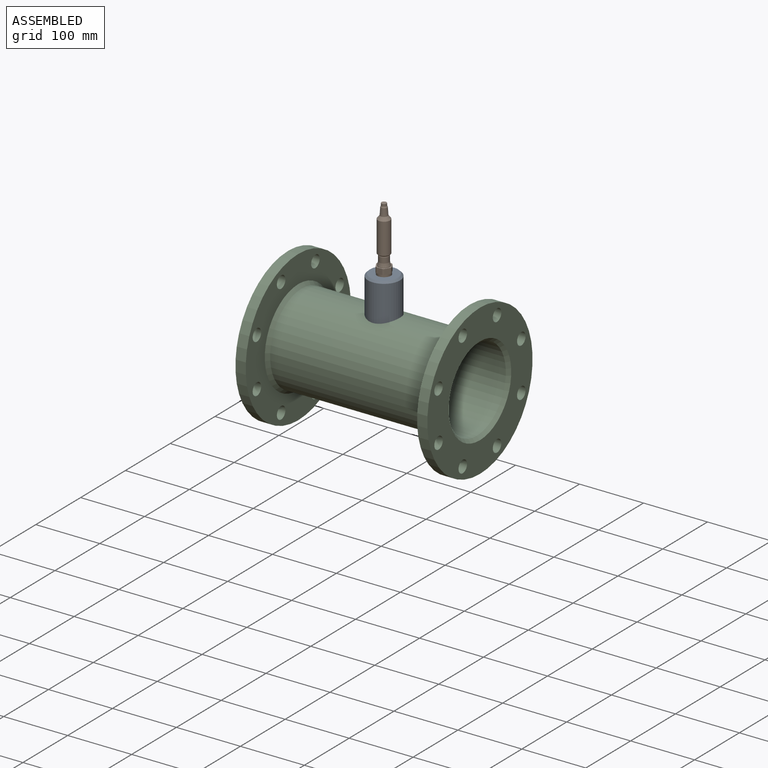
[diagram: assembled view]
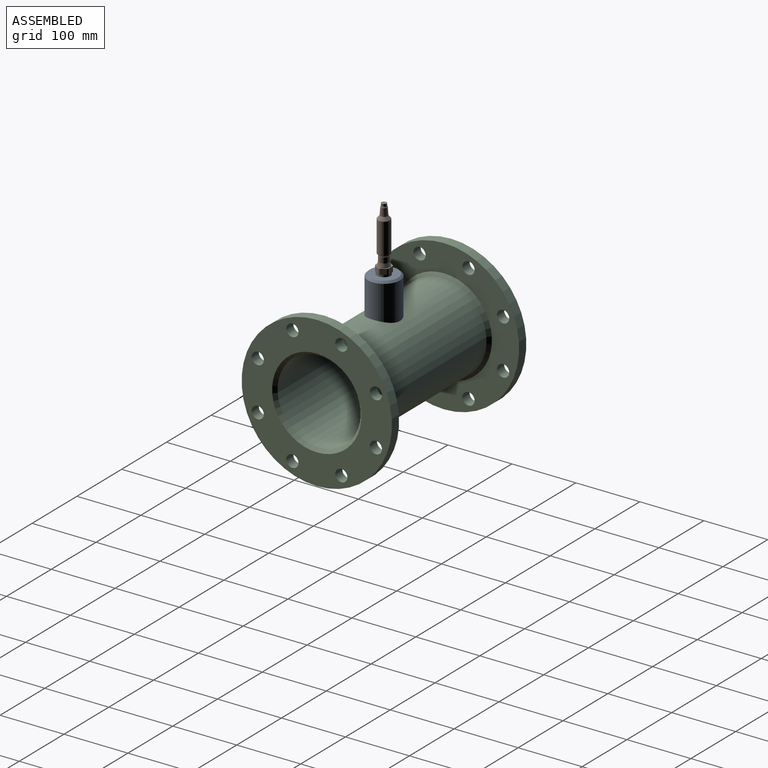
[diagram: assembled view, second angle]
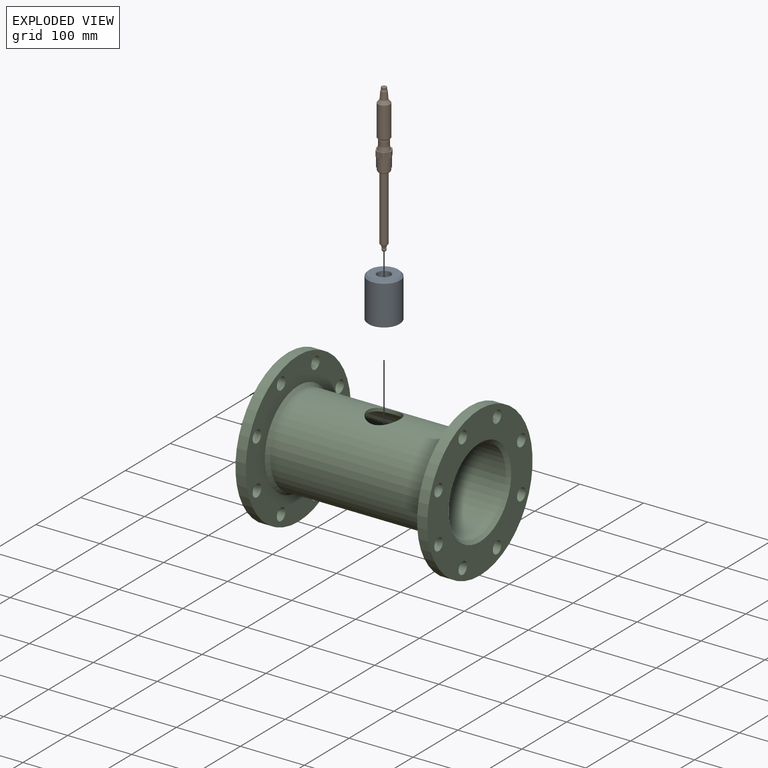
[diagram: exploded view]
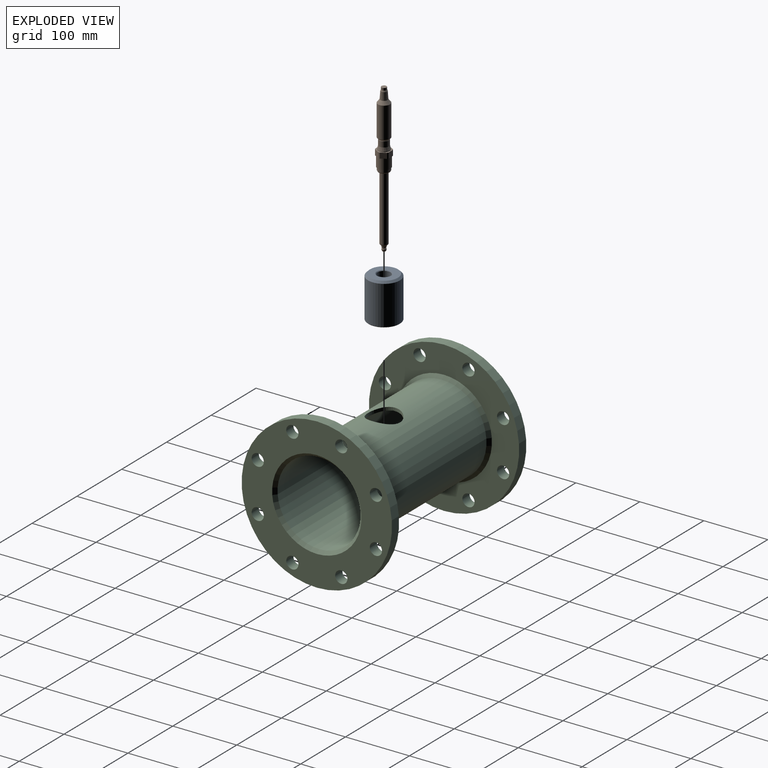
[diagram: exploded view, second angle]
ASSEMBLY  parts=3 mates=2
PART A: 18 faces, bbox 50x50x65 mm
  f0: cylinder r=9.25mm len=18.5mm, axis (0,0,1), area 145.3mm2, adj f8,f17
  f1: cylinder r=6.05mm len=44.5mm, axis (0,0,-1), area 1691.6mm2, adj f7,f8
  f2: cylinder r=25mm len=61mm, axis (0,0,-1), area 9581.9mm2, adj f5,f6
  f3: plane 44x44mm, normal (0,0,1), area 1126.4mm2, adj f5,f16
  f4: plane 48x48mm, normal (0,0,-1), area 1653.4mm2, adj f6,f7
  f5: cone r=22mm half-angle=45deg, axis (0,0,-1), area 626.4mm2, adj f2,f3
  f6: cone r=25mm half-angle=45deg, axis (0,0,1), area 217.7mm2, adj f2,f4
  f7: cone r=6.05mm half-angle=45deg, axis (0,0,-1), area 58.2mm2, adj f1,f4
  f8: plane 18.5x18.5mm, normal (0,0,1), area 153.8mm2, adj f0,f1
  f9: cylinder r=10.2mm len=20.4mm, axis (0,0,1), area 67.3mm2, adj f13,f17
  f10: cylinder r=10.2mm len=20.4mm, axis (0,0,1), area 705mm2, adj f11,f16
  f11: plane 21x21mm, normal (0,0,-1), area 19.5mm2, adj f10,f15
  f12: cylinder r=11mm len=22mm, axis (0,0,-1), area 138.2mm2, adj f14,f15
  f13: plane 21x21mm, normal (0,0,1), area 19.5mm2, adj f9,f14
  f14: torus R=10.5mm, axis (0,0,1), area 53.4mm2, adj f12,f13
  f15: torus R=10.5mm, axis (0,0,1), area 53.4mm2, adj f11,f12
  f16: cone r=10.2mm half-angle=45deg, axis (0,0,1), area 95.1mm2, adj f3,f10
  f17: cone r=9.25mm half-angle=45deg, axis (0,0,1), area 82.1mm2, adj f0,f9
PART B: 42 faces, bbox 23x21x232.8 mm
  f0: plane 9.38x8.5mm, normal (0,-1,0), area 79.7mm2, adj f6,f23,f25,f26
  f1: plane 8.5x8.12mm, normal (0.87,-0.5,0), area 79.7mm2, adj f6,f23,f25,f28
  f2: plane 8.5x8.12mm, normal (0.87,0.5,0), area 79.7mm2, adj f6,f23,f28,f29
  f3: plane 9.38x8.5mm, normal (0,1,0), area 79.7mm2, adj f6,f23,f24,f29
  f4: plane 8.5x8.12mm, normal (-0.87,0.5,0), area 79.7mm2, adj f6,f23,f24,f27
  f5: plane 8.5x8.12mm, normal (-0.87,-0.5,0), area 79.7mm2, adj f6,f23,f26,f27
  f6: plane 23x21mm, normal (0,0,1), area 120.3mm2, adj f0,f1,f2,f3,f4,f5,f24,f25
  f7: sphere r=3.35mm, area 112.6mm2, adj f8
  f8: cone r=2.69mm half-angle=31.1deg, axis (0,0,1), area 24.4mm2, adj f7,f9
  f9: plane 6.7x6.7mm, normal (0,0,1), area 4.1mm2, adj f8,f10
  f10: cone r=3.15mm half-angle=45deg, axis (0,0,1), area 5.8mm2, adj f9,f11
  f11: cylinder r=3.35mm len=6.7mm, axis (0,0,-1), area 25.3mm2, adj f10,f12
  f12: torus R=0.6mm, axis (0,0,-1), area 52.2mm2, adj f11,f13
  f13: cylinder r=4.1mm len=8.2mm, axis (0,0,-1), area 5.2mm2, adj f12,f14
  f14: plane 8.2x8.2mm, normal (0,0,1), area 3.8mm2, adj f13,f15
  f15: torus R=3.95mm, axis (0,0,-1), area 103.1mm2, adj f14,f16
  f16: cylinder r=5.95mm len=101.3mm, axis (0,0,-1), area 3787.1mm2, adj f15,f17
  f17: plane 14.2x14.2mm, normal (0,0,-1), area 47.1mm2, adj f16,f18
  f18: torus R=7.1mm, axis (0,0,-1), area 161.4mm2, adj f17,f19
  f19: plane 18.5x18.5mm, normal (0,0,-1), area 24.7mm2, adj f18,f20
  f20: cylinder r=9.25mm len=18.5mm, axis (0,0,-1), area 261.5mm2, adj f19,f21
  f21: plane 20.4x20.4mm, normal (0,0,-1), area 58mm2, adj f20,f22
  f22: cylinder r=10.2mm len=20.4mm, axis (0,0,-1), area 1025.4mm2, adj f21,f23
  f23: plane 23x21mm, normal (0,0,-1), area 50.8mm2, adj f0,f1,f2,f3,f4,f5,f22,f24
  f24: cylinder r=11.5mm len=8.5mm, axis (0,0,1), area 20.2mm2, adj f3,f4,f6,f23
  f25: cylinder r=11.5mm len=8.5mm, axis (0,0,1), area 20.2mm2, adj f0,f1,f6,f23
  f26: cylinder r=11.5mm len=8.5mm, axis (0,0,1), area 20.2mm2, adj f0,f5,f6,f23
  f27: cylinder r=11.5mm len=8.5mm, axis (0,0,1), area 20.2mm2, adj f4,f5,f6,f23
  f28: cylinder r=11.5mm len=8.5mm, axis (0,0,1), area 20.2mm2, adj f1,f2,f6,f23
  f29: cylinder r=11.5mm len=8.5mm, axis (0,0,1), area 20.2mm2, adj f2,f3,f6,f23
  f30: cylinder r=9.05mm len=18.1mm, axis (0,0,-1), area 34.1mm2, adj f6,f31
  f31: cone r=7.7mm half-angle=14deg, axis (0,0,-1), area 292.9mm2, adj f30,f32
  f32: cylinder r=7.7mm len=15.4mm, axis (0,0,-1), area 401.6mm2, adj f31,f33
  f33: cone r=7.4mm half-angle=10deg, axis (0,0,-1), area 81.9mm2, adj f32,f35
  f34: cylinder r=9.5mm len=48.46mm, axis (0,0,-1), area 2892.4mm2, adj f36,f37
  f35: plane 16x16mm, normal (0,0,-1), area 29mm2, adj f33,f36
  f36: cone r=9.5mm half-angle=45deg, axis (0,0,1), area 116.6mm2, adj f34,f35
  f37: cone r=5.7mm half-angle=37deg, axis (0,0,-1), area 301.5mm2, adj f34,f38
  f38: cone r=5.7mm half-angle=4.1deg, axis (0,0,-1), area 395.4mm2, adj f37,f39
  f39: cone r=4.85mm half-angle=25.3deg, axis (0,0,-1), area 55.3mm2, adj f38,f40
  f40: cylinder r=4mm len=8mm, axis (0,0,1), area 92.5mm2, adj f39,f41
  f41: plane 8x8mm, normal (0,0,1), area 50.3mm2, adj f40
PART C: 29 faces, bbox 300x235x235 mm
  f0: cylinder r=69.9mm len=258mm, axis (-1,0,0), area 111318.3mm2, adj f26,f27,f28
  f1: cylinder r=64.9mm len=290mm, axis (-1,0,0), area 116256.8mm2, adj f24,f25,f28
  f2: cylinder r=9.5mm len=19mm, axis (1,0,0), area 955mm2, adj f11,f12
  f3: cylinder r=9.5mm len=19mm, axis (1,0,0), area 955mm2, adj f11,f12
  f4: cylinder r=9.5mm len=19mm, axis (1,0,0), area 955mm2, adj f11,f12
  f5: cylinder r=9.5mm len=19mm, axis (1,0,0), area 955mm2, adj f11,f12
  f6: cylinder r=9.5mm len=19mm, axis (1,0,0), area 955mm2, adj f11,f12
  f7: cylinder r=9.5mm len=19mm, axis (1,0,0), area 955mm2, adj f11,f12
  f8: cylinder r=9.5mm len=19mm, axis (1,0,0), area 955mm2, adj f11,f12
  f9: cylinder r=9.5mm len=19mm, axis (1,0,0), area 955mm2, adj f11,f12
  f10: cylinder r=117.5mm len=235mm, axis (1,0,0), area 11812.4mm2, adj f11,f12
  f11: plane 235x235mm, normal (-1,0,0), area 23481mm2, adj f2,f3,f4,f5,f6,f7,f8,f9
  f12: plane 235x235mm, normal (1,0,0), area 25755.5mm2, adj f2,f3,f4,f5,f6,f7,f8,f9
  f13: cylinder r=9.5mm len=19mm, axis (-1,0,0), area 955mm2, adj f22,f23
  f14: cylinder r=9.5mm len=19mm, axis (-1,0,0), area 955mm2, adj f22,f23
  f15: cylinder r=9.5mm len=19mm, axis (-1,0,0), area 955mm2, adj f22,f23
  f16: cylinder r=9.5mm len=19mm, axis (-1,0,0), area 955mm2, adj f22,f23
  f17: cylinder r=9.5mm len=19mm, axis (-1,0,0), area 955mm2, adj f22,f23
  f18: cylinder r=9.5mm len=19mm, axis (-1,0,0), area 955mm2, adj f22,f23
  f19: cylinder r=9.5mm len=19mm, axis (-1,0,0), area 955mm2, adj f22,f23
  f20: cylinder r=9.5mm len=19mm, axis (-1,0,0), area 955mm2, adj f22,f23
  f21: cylinder r=117.5mm len=235mm, axis (-1,0,0), area 11812.4mm2, adj f22,f23
  f22: plane 235x235mm, normal (1,0,0), area 23481mm2, adj f13,f14,f15,f16,f17,f18,f19,f20
  f23: plane 235x235mm, normal (-1,0,0), area 25755.5mm2, adj f13,f14,f15,f16,f17,f18,f19,f20
  f24: cone r=69.9mm half-angle=45deg, axis (-1,0,0), area 2994.5mm2, adj f1,f23
  f25: cone r=64.9mm half-angle=45deg, axis (1,0,0), area 2994.5mm2, adj f1,f12
  f26: cone r=74.9mm half-angle=45deg, axis (1,0,0), area 3216.6mm2, adj f0,f11
  f27: cone r=74.9mm half-angle=45deg, axis (-1,0,0), area 3216.6mm2, adj f0,f22
  f28: cylinder r=25mm len=50mm, axis (0,0,-1), area 815.8mm2, adj f0,f1
PLACE A t=(-52.84,153.31,60.42)mm
PLACE B t=(-52.84,153.31,-4.08)mm
PLACE C t=(-52.84,153.3,-0.18)mm
MATE fastened B.f8 <-> A.f2  axis (0,0,-1) through (-52.84,153.31,105.92)mm
MATE fastened A.f1 <-> C.f28  axis (0,0,-1) through (-52.84,153.31,60.42)mm
